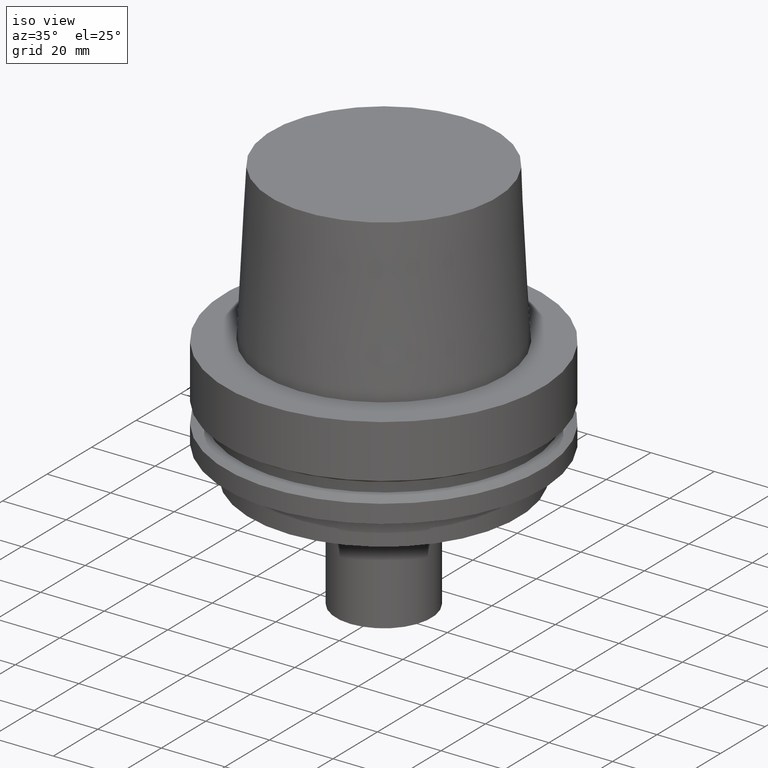
[diagram: clean part render]
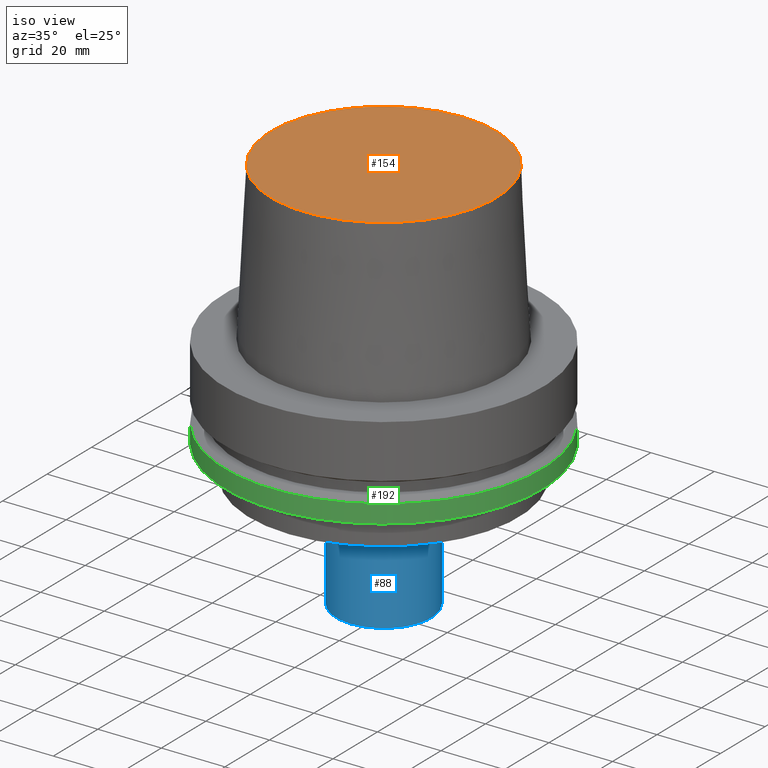
[diagram: same view with three faces highlighted in distinct colors, each labeled with its STEP entity id]
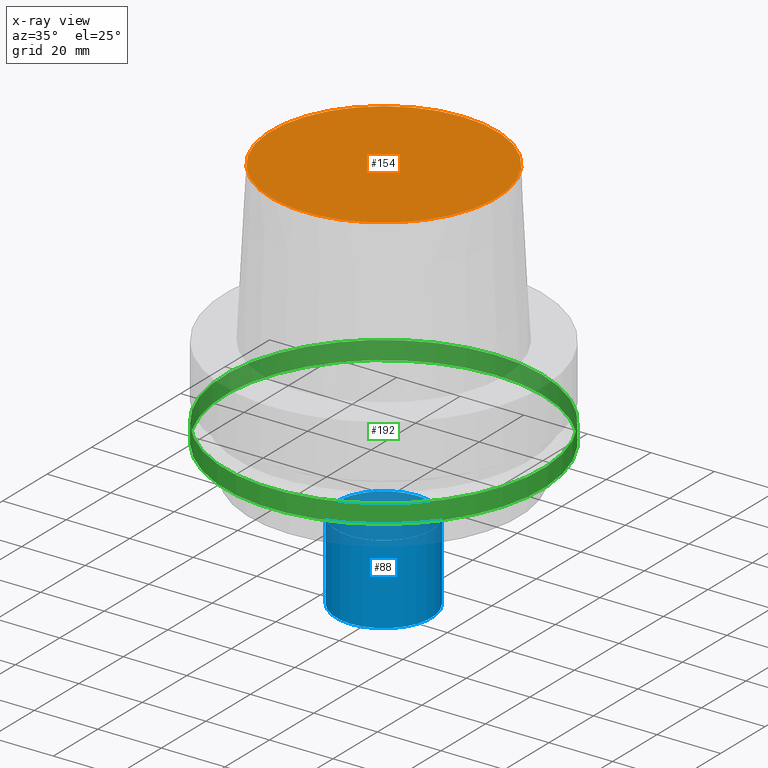
[diagram: x-ray of the same camera — body ghosted, the three highlighted faces saturated]
A machine part, iso view with three faces highlighted in distinct colors.
The next image is the same camera in x-ray (body ghosted, the three faces saturated) — at least one of them is partly hidden behind the body in this view.
Their STEP definitions:

[orange] entity #154 — the highlighted planar face has unit normal (-0, -0, 1).
#113=EDGE_CURVE('Unnamed[1]',#272,#272,#273,.T.);
#154=ADVANCED_FACE('Unnamed[1]',(#334),#335,.T.);
#272=VERTEX_POINT('',#483);
#273=CIRCLE('',#484,35.5000000015618);
#334=FACE_OUTER_BOUND('',#560,.T.);
#335=PLANE('',#561);
#483=CARTESIAN_POINT('',(-3.06161699786838E-015,35.5000000015618,50.0));
#484=AXIS2_PLACEMENT_3D('',#710,#711,#712);
#560=EDGE_LOOP('',(#777));
#561=AXIS2_PLACEMENT_3D('',#778,#779,#780);
#710=CARTESIAN_POINT('',(-3.06161699786838E-015,-6.12323399573676E-015,50.0));
#711=DIRECTION('',(6.12323399573677E-017,1.22464679914735E-016,-1.0));
#712=DIRECTION('',(-1.23259516440783E-032,1.0,1.22464679914735E-016));
#777=ORIENTED_EDGE('',*,*,#113,.F.);
#778=CARTESIAN_POINT('',(-3.06161699786838E-015,17.7500000007809,50.0));
#779=DIRECTION('',(-6.12323399573677E-017,-1.22464679914735E-016,1.0));
#780=DIRECTION('',(1.23259516440783E-032,-1.0,-1.22464679914735E-016));

[blue] entity #88 — the highlighted cylindrical surface (bore or boss wall) has radius 15 mm, axis along (0, 0, -1).
#88=ADVANCED_FACE('Unnamed[1]',(#233,#234),#235,.T.);
#156=EDGE_CURVE('Unnamed[1]',#337,#337,#338,.T.);
#167=EDGE_CURVE('Unnamed[1]',#354,#354,#355,.T.);
#233=FACE_BOUND('',#435,.T.);
#234=FACE_BOUND('',#436,.T.);
#235=CYLINDRICAL_SURFACE('',#437,15.0);
#337=VERTEX_POINT('',#564);
#338=CIRCLE('',#565,15.0000000000001);
#354=VERTEX_POINT('',#586);
#355=CIRCLE('',#587,15.0);
#435=EDGE_LOOP('',(#668));
#436=EDGE_LOOP('',(#669));
#437=AXIS2_PLACEMENT_3D('',#670,#671,#672);
#564=CARTESIAN_POINT('',(3.06161699786838E-015,15.0000000000001,-50.0));
#565=AXIS2_PLACEMENT_3D('',#781,#782,#783);
#586=CARTESIAN_POINT('',(4.59242549680258E-015,15.0,-75.0000000000001));
#587=AXIS2_PLACEMENT_3D('',#799,#800,#801);
#668=ORIENTED_EDGE('',*,*,#167,.F.);
#669=ORIENTED_EDGE('',*,*,#156,.T.);
#670=CARTESIAN_POINT('',(3.82702124733548E-015,7.65404249467096E-015,-62.5));
#671=DIRECTION('',(6.12323399573677E-017,1.22464679914735E-016,-1.0));
#672=DIRECTION('',(-1.23259516440783E-032,1.0,1.22464679914735E-016));
#781=CARTESIAN_POINT('',(3.06161699786838E-015,6.12323399573677E-015,-50.0));
#782=DIRECTION('',(6.12323399573677E-017,1.22464679914735E-016,-1.0));
#783=DIRECTION('',(-1.23259516440783E-032,1.0,1.22464679914735E-016));
#799=CARTESIAN_POINT('',(4.59242549680258E-015,9.18485099360515E-015,-75.0000000000001));
#800=DIRECTION('',(6.12323399573677E-017,1.22464679914735E-016,-1.0));
#801=DIRECTION('',(-1.23259516440783E-032,1.0,1.22464679914735E-016));

[green] entity #192 — the highlighted cylindrical surface (bore or boss wall) has radius 50 mm, axis along (0, 0, -1).
#165=EDGE_CURVE('Unnamed[1]',#351,#351,#352,.T.);
#192=ADVANCED_FACE('Unnamed[1]',(#392,#393),#394,.T.);
#194=EDGE_CURVE('Unnamed[1]',#396,#396,#397,.T.);
#351=VERTEX_POINT('',#582);
#352=CIRCLE('',#583,50.0);
#392=FACE_BOUND('',#633,.T.);
#393=FACE_BOUND('',#634,.T.);
#394=CYLINDRICAL_SURFACE('',#635,50.0);
#396=VERTEX_POINT('',#638);
#397=CIRCLE('',#639,50.0);
#582=CARTESIAN_POINT('',(1.42350465615161E-015,50.0,-23.24759526));
#583=AXIS2_PLACEMENT_3D('',#796,#797,#798);
#633=EDGE_LOOP('',(#843));
#634=EDGE_LOOP('',(#844));
#635=AXIS2_PLACEMENT_3D('',#845,#846,#847);
#638=CARTESIAN_POINT('',(1.77573785876366E-015,50.0,-29.0));
#639=AXIS2_PLACEMENT_3D('',#848,#849,#850);
#796=CARTESIAN_POINT('',(1.42350465615161E-015,2.84700931230322E-015,-23.24759526));
#797=DIRECTION('',(6.12323399573677E-017,1.22464679914735E-016,-1.0));
#798=DIRECTION('',(-1.23259516440783E-032,1.0,1.22464679914735E-016));
#843=ORIENTED_EDGE('',*,*,#194,.F.);
#844=ORIENTED_EDGE('',*,*,#165,.T.);
#845=CARTESIAN_POINT('',(1.59962125745764E-015,3.19924251491527E-015,-26.12379763));
#846=DIRECTION('',(6.12323399573677E-017,1.22464679914735E-016,-1.0));
#847=DIRECTION('',(-1.23259516440783E-032,1.0,1.22464679914735E-016));
#848=CARTESIAN_POINT('',(1.77573785876366E-015,3.55147571752733E-015,-29.0));
#849=DIRECTION('',(6.12323399573677E-017,1.22464679914735E-016,-1.0));
#850=DIRECTION('',(-1.23259516440783E-032,1.0,1.22464679914735E-016));